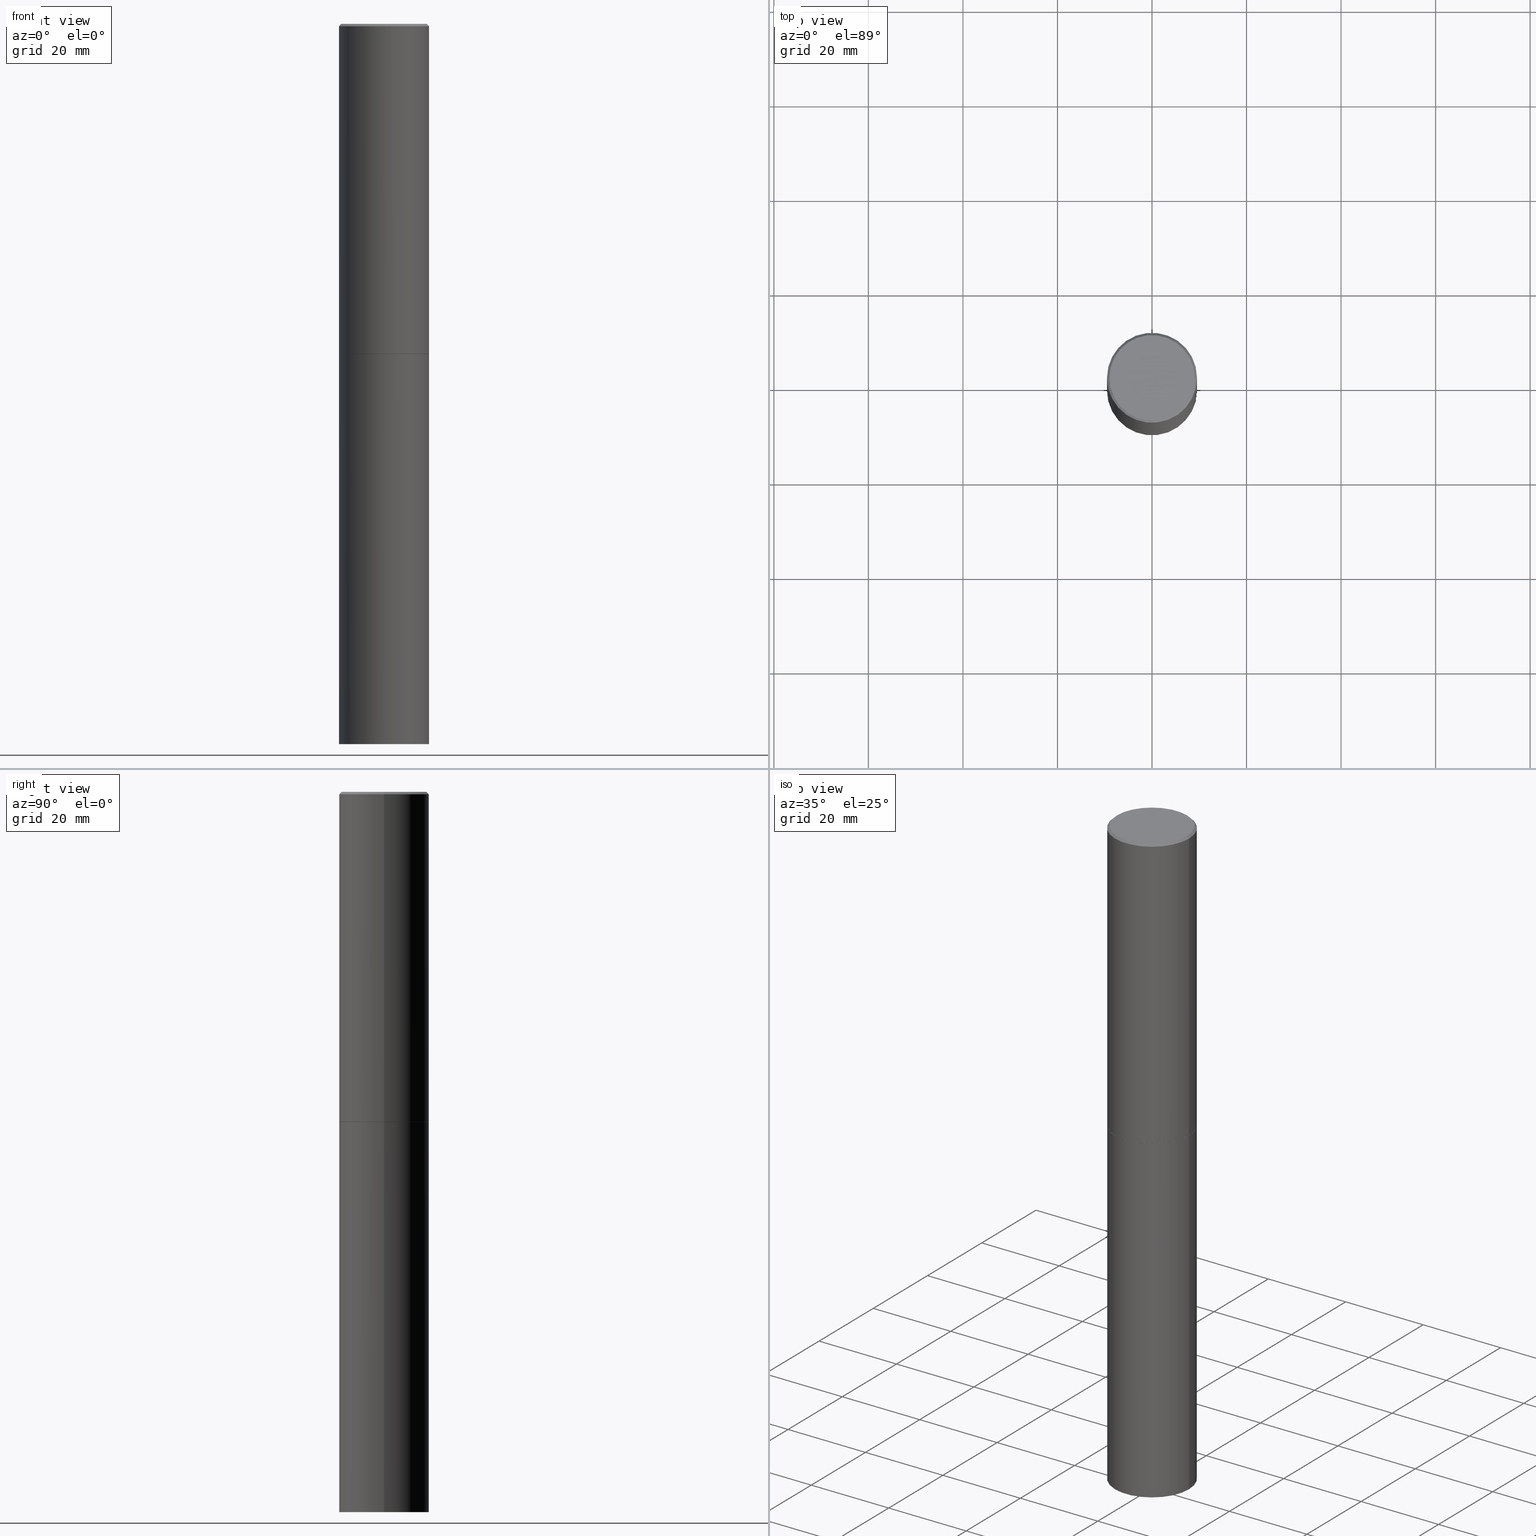
[diagram: canonical four-view strip — front | top / right | iso, engineering-drawing reading convention]
A machine part, canonical four-view strip (front | top / right | iso — engineering-drawing reading convention). The complete STEP part file that produces these views, byte-faithful:
ISO-10303-21;
HEADER;
FILE_DESCRIPTION (( 'STEP AP203' ),
    '1' );
FILE_NAME ('34750.STEP',
    '2024-02-27T17:34:54',
    ( '' ),
    ( '' ),
    'SwSTEP 2.0',
    'SolidWorks 2023',
    '' );
FILE_SCHEMA (( 'CONFIG_CONTROL_DESIGN' ));
ENDSEC;

DATA;
#1 = EDGE_CURVE ( 'NONE', #173, #246, #187, .T. ) ;
#2 = DIRECTION ( 'NONE',  ( -2.445468806185136597E-29, 3.491481338843145583E-15, 1.000000000000000000 ) ) ;
#3 = PERSON_AND_ORGANIZATION_ROLE ( 'design_owner' ) ;
#4 = CC_DESIGN_PERSON_AND_ORGANIZATION_ASSIGNMENT ( #56, #225, ( #26 ) ) ;
#5 =( CONVERSION_BASED_UNIT ( 'INCH', #251 ) LENGTH_UNIT ( ) NAMED_UNIT ( #166 ) );
#6 = EDGE_CURVE ( 'NONE', #199, #51, #306, .T. ) ;
#7 = CIRCLE ( 'NONE', #271, 0.3750000000000000555 ) ;
#8 = ORIENTED_EDGE ( 'NONE', *, *, #11, .F. ) ;
#9 = CC_DESIGN_PERSON_AND_ORGANIZATION_ASSIGNMENT ( #300, #3, ( #341 ) ) ;
#10 = ORIENTED_EDGE ( 'NONE', *, *, #15, .F. ) ;
#11 = EDGE_CURVE ( 'NONE', #146, #136, #348, .T. ) ;
#12 = AXIS2_PLACEMENT_3D ( 'NONE', #132, #328, #108 ) ;
#13 = DIRECTION ( 'NONE',  ( -2.445468806185136597E-29, 3.491481338843145583E-15, 1.000000000000000000 ) ) ;
#14 = CARTESIAN_POINT ( 'NONE',  ( 6.722593748202942280E-29, -9.598082200479810007E-15, -2.749000000000000554 ) ) ;
#15 = EDGE_CURVE ( 'NONE', #199, #61, #148, .T. ) ;
#16 = DIRECTION ( 'NONE',  ( 1.000000000000000000, -6.982962677686266711E-15, 0.000000000000000000 ) ) ;
#17 =( GEOMETRIC_REPRESENTATION_CONTEXT ( 3 ) GLOBAL_UNCERTAINTY_ASSIGNED_CONTEXT ( ( #273 ) ) GLOBAL_UNIT_ASSIGNED_CONTEXT ( ( #5, #219, #29 ) ) REPRESENTATION_CONTEXT ( 'NONE', 'WORKASPACE' ) );
#18 = DIRECTION ( 'NONE',  ( -2.438088387897960049E-29, 3.491481338843145188E-15, 1.000000000000000000 ) ) ;
#19 = CARTESIAN_POINT ( 'NONE',  ( 6.722593748202942280E-29, -9.598082200479810007E-15, -2.749000000000000554 ) ) ;
#20 = PERSON_AND_ORGANIZATION_ROLE ( 'creator' ) ;
#21 = CARTESIAN_POINT ( 'NONE',  ( 0.3549999999999997047, -2.538996582575039076E-15, 4.268512490117958041E-18 ) ) ;
#22 = ORIENTED_EDGE ( 'NONE', *, *, #1, .T. ) ;
#23 = FACE_OUTER_BOUND ( 'NONE', #352, .T. ) ;
#24 = AXIS2_PLACEMENT_3D ( 'NONE', #232, #67, #288 ) ;
#25 = MANIFOLD_SOLID_BREP ( 'Body-Move/Copy2[1]', #349 ) ;
#26 = PRODUCT_DEFINITION_FORMATION_WITH_SPECIFIED_SOURCE ( 'ANY', '', #341, .NOT_KNOWN. ) ;
#27 = DIRECTION ( 'NONE',  ( 0.000000000000000000, 0.000000000000000000, 1.000000000000000000 ) ) ;
#28 = EDGE_CURVE ( 'NONE', #51, #199, #186, .T. ) ;
#29 =( NAMED_UNIT ( * ) SI_UNIT ( $, .STERADIAN. ) SOLID_ANGLE_UNIT ( ) );
#30 = ORGANIZATION ( 'UNSPECIFIED', 'UNSPECIFIED', '' ) ;
#31 = ORIENTED_EDGE ( 'NONE', *, *, #116, .F. ) ;
#32 = VECTOR ( 'NONE', #100, 39.37007874015748143 ) ;
#33 = DIRECTION ( 'NONE',  ( -0.7071067811865471286, 2.468850131082252722E-15, -0.7071067811865479058 ) ) ;
#34 = CALENDAR_DATE ( 2024, 27, 2 ) ;
#35 = ORIENTED_EDGE ( 'NONE', *, *, #66, .T. ) ;
#36 = CC_DESIGN_DATE_AND_TIME_ASSIGNMENT ( #167, #110, ( #182 ) ) ;
#37 = DIRECTION ( 'NONE',  ( 1.000000000000000000, -6.982962677686265133E-15, 0.000000000000000000 ) ) ;
#38 = CC_DESIGN_PERSON_AND_ORGANIZATION_ASSIGNMENT ( #156, #190, ( #60 ) ) ;
#39 = CARTESIAN_POINT ( 'NONE',  ( -0.3749999999999998890, 2.664535259100374908E-15, -1.844600658845589038E-29 ) ) ;
#40 = AXIS2_PLACEMENT_3D ( 'NONE', #85, #188, #74 ) ;
#41 = EDGE_LOOP ( 'NONE', ( #22, #205, #158, #31 ) ) ;
#42 = LINE ( 'NONE', #285, #124 ) ;
#43 = CARTESIAN_POINT ( 'NONE',  ( 4.890937612370293302E-31, -6.982962677686318726E-17, -0.02000000000000008021 ) ) ;
#44 = FACE_OUTER_BOUND ( 'NONE', #125, .T. ) ;
#45 = DIRECTION ( 'NONE',  ( 1.000000000000000000, -6.982962677686265922E-15, 4.876176775795935793E-29 ) ) ;
#46 = ORIENTED_EDGE ( 'NONE', *, *, #163, .F. ) ;
#47 = AXIS2_PLACEMENT_3D ( 'NONE', #280, #27, #336 ) ;
#48 = PERSON_AND_ORGANIZATION_ROLE ( 'design_supplier' ) ;
#49 = LINE ( 'NONE', #82, #92 ) ;
#50 = DIRECTION ( 'NONE',  ( -2.445468806185136877E-29, 3.491481338843145188E-15, 1.000000000000000000 ) ) ;
#51 = VERTEX_POINT ( 'NONE', #150 ) ;
#52 = APPROVAL_STATUS ( 'not_yet_approved' ) ;
#53 = CARTESIAN_POINT ( 'NONE',  ( 4.890937612370293302E-31, -6.982962677686318726E-17, -0.02000000000000008021 ) ) ;
#54 = AXIS2_PLACEMENT_3D ( 'NONE', #19, #356, #214 ) ;
#55 = COORDINATED_UNIVERSAL_TIME_OFFSET ( 5, 0, .BEHIND. ) ;
#56 = PERSON_AND_ORGANIZATION ( #172, #30 ) ;
#57 = APPROVAL_DATE_TIME ( #227, #312 ) ;
#58 = CARTESIAN_POINT ( 'NONE',  ( 2.618611004132417464E-15, 0.3749999999999903966, -2.750000000000000888 ) ) ;
#59 = CLOSED_SHELL ( 'NONE', ( #91, #70, #76, #204, #305, #295, #325, #193 ) ) ;
#60 = SECURITY_CLASSIFICATION ( '', '', #81 ) ;
#61 = VERTEX_POINT ( 'NONE', #265 ) ;
#62 = EDGE_CURVE ( 'NONE', #246, #344, #126, .T. ) ;
#63 = ORIENTED_EDGE ( 'NONE', *, *, #168, .T. ) ;
#64 = VECTOR ( 'NONE', #263, 39.37007874015748143 ) ;
#65 = AXIS2_PLACEMENT_3D ( 'NONE', #206, #69, #213 ) ;
#66 = EDGE_CURVE ( 'NONE', #314, #146, #42, .T. ) ;
#67 = DIRECTION ( 'NONE',  ( -2.445468806185136597E-29, 3.491481338843145583E-15, 1.000000000000000000 ) ) ;
#68 = DIRECTION ( 'NONE',  ( 1.000000000000000000, -6.982962677686265922E-15, 0.000000000000000000 ) ) ;
#69 = DIRECTION ( 'NONE',  ( -2.445468806185136597E-29, 3.491481338843145583E-15, 1.000000000000000000 ) ) ;
#70 = ADVANCED_FACE ( 'NONE', ( #145 ), #301, .T. ) ;
#71 = CARTESIAN_POINT ( 'NONE',  ( 0.3750000000000000555, -2.356749903719122272E-14, -6.000000000000000888 ) ) ;
#72 = ORIENTED_EDGE ( 'NONE', *, *, #140, .F. ) ;
#73 = DIRECTION ( 'NONE',  ( -2.445468806185136597E-29, 3.491481338843145583E-15, 1.000000000000000000 ) ) ;
#74 = DIRECTION ( 'NONE',  ( -1.000000000000000000, 6.982962677686265922E-15, -4.876176775795935793E-29 ) ) ;
#75 = CALENDAR_DATE ( 2024, 27, 2 ) ;
#76 = ADVANCED_FACE ( 'NONE', ( #23 ), #240, .T. ) ;
#77 = CARTESIAN_POINT ( 'NONE',  ( -0.3739999999999999991, -6.938845395727654346E-15, -2.749999999999999556 ) ) ;
#78 = CONICAL_SURFACE ( 'NONE', #307, 0.3749999999999997780, 0.7853981633974477239 ) ;
#79 = EDGE_LOOP ( 'NONE', ( #354, #179, #321, #8 ) ) ;
#80 = LOCAL_TIME ( 12, 34, 54.00000000000000000, #230 ) ;
#81 = SECURITY_CLASSIFICATION_LEVEL ( 'unclassified' ) ;
#82 = CARTESIAN_POINT ( 'NONE',  ( 0.3749999999999998890, -2.618611004132349228E-15, 1.828566290923475362E-29 ) ) ;
#83 = EDGE_LOOP ( 'NONE', ( #160, #63 ) ) ;
#84 = DATE_TIME_ROLE ( 'classification_date' ) ;
#85 = CARTESIAN_POINT ( 'NONE',  ( 2.478951750578622237E-15, 0.3549999999999997047, -1.237341619044265441E-15 ) ) ;
#86 = ADVANCED_FACE ( 'NONE', ( #106 ), #103, .T. ) ;
#87 = COORDINATED_UNIVERSAL_TIME_OFFSET ( 5, 0, .BEHIND. ) ;
#88 = AXIS2_PLACEMENT_3D ( 'NONE', #184, #212, #216 ) ;
#89 = APPROVAL_ROLE ( '' ) ;
#90 = ORIENTED_EDGE ( 'NONE', *, *, #250, .T. ) ;
#91 = ADVANCED_FACE ( 'NONE', ( #195 ), #154, .T. ) ;
#92 = VECTOR ( 'NONE', #50, 39.37007874015748143 ) ;
#93 = ORIENTED_EDGE ( 'NONE', *, *, #176, .F. ) ;
#94 = EDGE_CURVE ( 'NONE', #363, #344, #235, .T. ) ;
#95 = EDGE_LOOP ( 'NONE', ( #121, #90, #286, #332 ) ) ;
#96 = CARTESIAN_POINT ( 'NONE',  ( 0.3749999999999997780, -2.642516375941186056E-15, -0.02000000000000008021 ) ) ;
#97 = DIRECTION ( 'NONE',  ( -2.445468806185136597E-29, 3.491481338843145583E-15, 1.000000000000000000 ) ) ;
#98 = CARTESIAN_POINT ( 'NONE',  ( 0.3750000000000000555, -1.221669320461216002E-14, -2.749000000000000554 ) ) ;
#99 = DIRECTION ( 'NONE',  ( 1.000000000000000000, -6.982962677686265133E-15, 0.000000000000000000 ) ) ;
#100 = DIRECTION ( 'NONE',  ( -2.445468806185136877E-29, 3.491481338843145188E-15, 1.000000000000000000 ) ) ;
#101 = DIRECTION ( 'NONE',  ( 1.000000000000000000, -6.982962677686261189E-15, 0.000000000000000000 ) ) ;
#102 = AXIS2_PLACEMENT_3D ( 'NONE', #298, #155, #277 ) ;
#103 = PLANE ( 'NONE',  #88 ) ;
#104 = CC_DESIGN_PERSON_AND_ORGANIZATION_ASSIGNMENT ( #185, #48, ( #26 ) ) ;
#105 = DIRECTION ( 'NONE',  ( -2.445468806185136597E-29, 3.491481338843145583E-15, 1.000000000000000000 ) ) ;
#106 = FACE_OUTER_BOUND ( 'NONE', #324, .T. ) ;
#107 = CC_DESIGN_PERSON_AND_ORGANIZATION_ASSIGNMENT ( #330, #20, ( #182 ) ) ;
#108 = DIRECTION ( 'NONE',  ( 1.000000000000000000, -6.982962677686266711E-15, 0.000000000000000000 ) ) ;
#109 = EDGE_LOOP ( 'NONE', ( #269, #283, #231, #72 ) ) ;
#110 = DATE_TIME_ROLE ( 'creation_date' ) ;
#111 = LINE ( 'NONE', #242, #343 ) ;
#112 = CC_DESIGN_APPROVAL ( #122, ( #182 ) ) ;
#113 = ORIENTED_EDGE ( 'NONE', *, *, #66, .F. ) ;
#114 = PERSON_AND_ORGANIZATION ( #172, #30 ) ;
#115 = DIRECTION ( 'NONE',  ( -2.445468806185136597E-29, 3.491481338843145583E-15, 1.000000000000000000 ) ) ;
#116 = EDGE_CURVE ( 'NONE', #173, #363, #111, .T. ) ;
#117 = PRODUCT_DEFINITION_SHAPE ( 'NONE', 'NONE',  #182 ) ;
#118 = DIRECTION ( 'NONE',  ( -1.000000000000000000, 6.982962677686265922E-15, 0.000000000000000000 ) ) ;
#119 = MECHANICAL_CONTEXT ( 'NONE', #181, 'mechanical' ) ;
#120 = APPROVAL_PERSON_ORGANIZATION ( #194, #312, #313 ) ;
#121 = ORIENTED_EDGE ( 'NONE', *, *, #62, .F. ) ;
#122 = APPROVAL ( #52, 'UNSPECIFIED' ) ;
#123 = ORIENTED_EDGE ( 'NONE', *, *, #28, .T. ) ;
#124 = VECTOR ( 'NONE', #33, 39.37007874015748143 ) ;
#125 = EDGE_LOOP ( 'NONE', ( #224, #192 ) ) ;
#126 = LINE ( 'NONE', #237, #32 ) ;
#127 = FACE_OUTER_BOUND ( 'NONE', #340, .T. ) ;
#128 = CARTESIAN_POINT ( 'NONE',  ( -0.3749999999999997780, 2.548781377355484746E-15, -0.02000000000000008021 ) ) ;
#129 = AXIS2_PLACEMENT_3D ( 'NONE', #14, #180, #351 ) ;
#130 = CARTESIAN_POINT ( 'NONE',  ( 6.725039217009123399E-29, -9.601573681818648281E-15, -2.749999999999999556 ) ) ;
#131 = LOCAL_TIME ( 12, 34, 54.00000000000000000, #87 ) ;
#132 = CARTESIAN_POINT ( 'NONE',  ( 6.725039217009124520E-29, -9.601573681818649859E-15, -2.750000000000000000 ) ) ;
#133 = DESIGN_CONTEXT ( 'detailed design', #287, 'design' ) ;
#134 = CALENDAR_DATE ( 2024, 27, 2 ) ;
#135 = DIRECTION ( 'NONE',  ( -2.445468806185136597E-29, 3.491481338843145583E-15, 1.000000000000000000 ) ) ;
#136 = VERTEX_POINT ( 'NONE', #191 ) ;
#137 = APPROVAL_ROLE ( '' ) ;
#138 = CARTESIAN_POINT ( 'NONE',  ( 0.000000000000000000, 0.000000000000000000, 0.000000000000000000 ) ) ;
#139 = VECTOR ( 'NONE', #358, 39.37007874015748143 ) ;
#140 = EDGE_CURVE ( 'NONE', #259, #136, #49, .T. ) ;
#141 =( LENGTH_UNIT ( ) NAMED_UNIT ( * ) SI_UNIT ( $, .METRE. ) );
#142 = ORIENTED_EDGE ( 'NONE', *, *, #244, .T. ) ;
#143 = AXIS2_PLACEMENT_3D ( 'NONE', #290, #73, #101 ) ;
#144 = AXIS2_PLACEMENT_3D ( 'NONE', #58, #345, #347 ) ;
#145 = FACE_OUTER_BOUND ( 'NONE', #109, .T. ) ;
#146 = VERTEX_POINT ( 'NONE', #128 ) ;
#147 = CARTESIAN_POINT ( 'NONE',  ( 6.725039217009123399E-29, -9.601573681818648281E-15, -2.749999999999999556 ) ) ;
#148 = LINE ( 'NONE', #171, #64 ) ;
#149 = AXIS2_PLACEMENT_3D ( 'NONE', #334, #115, #218 ) ;
#150 = CARTESIAN_POINT ( 'NONE',  ( 0.3739999999999999991, -1.221320172327331228E-14, -2.749999999999999556 ) ) ;
#151 = CYLINDRICAL_SURFACE ( 'NONE', #65, 0.3749999999999998890 ) ;
#152 = CARTESIAN_POINT ( 'NONE',  ( 4.890937612370293302E-31, -6.982962677686318726E-17, -0.02000000000000008021 ) ) ;
#153 = PLANE ( 'NONE',  #322 ) ;
#154 = CONICAL_SURFACE ( 'NONE', #234, 0.3739999999999999991, 0.7853981633980972044 ) ;
#155 = DIRECTION ( 'NONE',  ( -2.445468806185136597E-29, 3.491481338843145583E-15, 1.000000000000000000 ) ) ;
#156 = PERSON_AND_ORGANIZATION ( #172, #30 ) ;
#157 = CYLINDRICAL_SURFACE ( 'NONE', #102, 0.3750000000000000555 ) ;
#158 = ORIENTED_EDGE ( 'NONE', *, *, #94, .F. ) ;
#159 = CYLINDRICAL_SURFACE ( 'NONE', #203, 0.3750000000000000555 ) ;
#160 = ORIENTED_EDGE ( 'NONE', *, *, #94, .T. ) ;
#161 = MANIFOLD_SOLID_BREP ( 'Body-Move/Copy2[2]', #59 ) ;
#162 = CARTESIAN_POINT ( 'NONE',  ( 0.3750000000000000555, -1.222018468595100145E-14, -2.750000000000000000 ) ) ;
#163 = EDGE_CURVE ( 'NONE', #61, #259, #364, .T. ) ;
#164 = DIRECTION ( 'NONE',  ( 2.445468806185136597E-29, -3.491481338843145583E-15, -1.000000000000000000 ) ) ;
#165 = CONICAL_SURFACE ( 'NONE', #279, 0.3739999999999999991, 0.7853981633980972044 ) ;
#166 = DIMENSIONAL_EXPONENTS ( 1.000000000000000000, 0.000000000000000000, 0.000000000000000000, 0.000000000000000000, 0.000000000000000000, 0.000000000000000000, 0.000000000000000000 ) ;
#167 = DATE_AND_TIME ( #196, #131 ) ;
#168 = EDGE_CURVE ( 'NONE', #344, #363, #7, .T. ) ;
#169 = VECTOR ( 'NONE', #236, 39.37007874015748143 ) ;
#170 = ADVANCED_FACE ( 'NONE', ( #361 ), #159, .T. ) ;
#171 = CARTESIAN_POINT ( 'NONE',  ( -0.3739999999999999991, -6.944143850075873593E-15, -2.749999999999999556 ) ) ;
#172 = PERSON ( 'UNSPECIFIED', 'UNSPECIFIED', 'UNSPECIFIED', ('UNSPECIFIED'), ('UNSPECIFIED'), ('UNSPECIFIED') ) ;
#173 = VERTEX_POINT ( 'NONE', #71 ) ;
#174 = LINE ( 'NONE', #262, #169 ) ;
#175 = ORIENTED_EDGE ( 'NONE', *, *, #1, .F. ) ;
#176 = EDGE_CURVE ( 'NONE', #314, #202, #223, .T. ) ;
#177 = CARTESIAN_POINT ( 'NONE',  ( 6.725039217009123399E-29, -9.601573681818648281E-15, -2.749999999999999556 ) ) ;
#178 = AXIS2_PLACEMENT_3D ( 'NONE', #267, #183, #353 ) ;
#179 = ORIENTED_EDGE ( 'NONE', *, *, #163, .T. ) ;
#180 = DIRECTION ( 'NONE',  ( -2.445468806185136597E-29, 3.491481338843145583E-15, 1.000000000000000000 ) ) ;
#181 = APPLICATION_CONTEXT ( 'configuration controlled 3d designs of mechanical parts and assemblies' ) ;
#182 = PRODUCT_DEFINITION ( 'UNKNOWN', '', #26, #133 ) ;
#183 = DIRECTION ( 'NONE',  ( -2.445468806185136597E-29, 3.491481338843145583E-15, 1.000000000000000000 ) ) ;
#184 = CARTESIAN_POINT ( 'NONE',  ( 2.618611004132496745E-15, 0.3749999999999790723, -6.000000000000001776 ) ) ;
#185 = PERSON_AND_ORGANIZATION ( #172, #30 ) ;
#186 = CIRCLE ( 'NONE', #233, 0.3739999999999999991 ) ;
#187 = CIRCLE ( 'NONE', #24, 0.3750000000000000555 ) ;
#188 = DIRECTION ( 'NONE',  ( 2.438088387897960049E-29, -3.491481338843145188E-15, -1.000000000000000000 ) ) ;
#189 = ORIENTED_EDGE ( 'NONE', *, *, #335, .F. ) ;
#190 = PERSON_AND_ORGANIZATION_ROLE ( 'classification_officer' ) ;
#191 = CARTESIAN_POINT ( 'NONE',  ( 0.3749999999999997780, -2.642516375941186056E-15, -0.02000000000000008021 ) ) ;
#192 = ORIENTED_EDGE ( 'NONE', *, *, #6, .F. ) ;
#193 = ADVANCED_FACE ( 'NONE', ( #215 ), #331, .F. ) ;
#194 = PERSON_AND_ORGANIZATION ( #172, #30 ) ;
#195 = FACE_OUTER_BOUND ( 'NONE', #310, .T. ) ;
#196 = CALENDAR_DATE ( 2024, 27, 2 ) ;
#197 = AXIS2_PLACEMENT_3D ( 'NONE', #152, #97, #68 ) ;
#198 = APPROVAL_STATUS ( 'not_yet_approved' ) ;
#199 = VERTEX_POINT ( 'NONE', #77 ) ;
#200 = ADVANCED_FACE ( 'NONE', ( #304 ), #157, .T. ) ;
#201 = CARTESIAN_POINT ( 'NONE',  ( 6.725039217009123399E-29, -9.601573681818648281E-15, -2.749999999999999556 ) ) ;
#202 = VERTEX_POINT ( 'NONE', #21 ) ;
#203 = AXIS2_PLACEMENT_3D ( 'NONE', #362, #326, #45 ) ;
#204 = ADVANCED_FACE ( 'NONE', ( #245 ), #78, .T. ) ;
#205 = ORIENTED_EDGE ( 'NONE', *, *, #62, .T. ) ;
#206 = CARTESIAN_POINT ( 'NONE',  ( 0.000000000000000000, 0.000000000000000000, 0.000000000000000000 ) ) ;
#207 = CC_DESIGN_DATE_AND_TIME_ASSIGNMENT ( #333, #84, ( #60 ) ) ;
#208 = ORIENTED_EDGE ( 'NONE', *, *, #256, .F. ) ;
#209 = DIRECTION ( 'NONE',  ( -2.445468806185136597E-29, 3.491481338843145583E-15, 1.000000000000000000 ) ) ;
#210 = AXIS2_PLACEMENT_3D ( 'NONE', #138, #272, #278 ) ;
#211 = LOCAL_TIME ( 12, 34, 54.00000000000000000, #275 ) ;
#212 = DIRECTION ( 'NONE',  ( 2.438088387897960049E-29, -3.491481338843145188E-15, -1.000000000000000000 ) ) ;
#213 = DIRECTION ( 'NONE',  ( 1.000000000000000000, -6.982962677686266711E-15, 4.876176775795935793E-29 ) ) ;
#214 = DIRECTION ( 'NONE',  ( 1.000000000000000000, -6.982962677686266711E-15, 0.000000000000000000 ) ) ;
#215 = FACE_OUTER_BOUND ( 'NONE', #315, .T. ) ;
#216 = DIRECTION ( 'NONE',  ( -1.000000000000000000, 6.982962677686265922E-15, -4.876176775795935793E-29 ) ) ;
#217 = APPROVAL_DATE_TIME ( #365, #122 ) ;
#218 = DIRECTION ( 'NONE',  ( 1.000000000000000000, -6.982962677686265922E-15, 4.876231632511992107E-29 ) ) ;
#219 =( NAMED_UNIT ( * ) PLANE_ANGLE_UNIT ( ) SI_UNIT ( $, .RADIAN. ) );
#220 = ORIENTED_EDGE ( 'NONE', *, *, #244, .F. ) ;
#221 = APPLICATION_PROTOCOL_DEFINITION ( 'international standard', 'config_control_design', 1994, #287 ) ;
#222 = FACE_OUTER_BOUND ( 'NONE', #83, .T. ) ;
#223 = CIRCLE ( 'NONE', #149, 0.3549999999999997047 ) ;
#224 = ORIENTED_EDGE ( 'NONE', *, *, #28, .F. ) ;
#225 = PERSON_AND_ORGANIZATION_ROLE ( 'creator' ) ;
#226 = SHAPE_DEFINITION_REPRESENTATION ( #117, #276 ) ;
#227 = DATE_AND_TIME ( #34, #80 ) ;
#228 = ADVANCED_FACE ( 'NONE', ( #222 ), #339, .F. ) ;
#229 = LOCAL_TIME ( 12, 34, 54.00000000000000000, #55 ) ;
#230 = COORDINATED_UNIVERSAL_TIME_OFFSET ( 5, 0, .BEHIND. ) ;
#231 = ORIENTED_EDGE ( 'NONE', *, *, #320, .F. ) ;
#232 = CARTESIAN_POINT ( 'NONE',  ( 1.467281283711081958E-28, -2.094888803305887271E-14, -6.000000000000000888 ) ) ;
#233 = AXIS2_PLACEMENT_3D ( 'NONE', #177, #13, #266 ) ;
#234 = AXIS2_PLACEMENT_3D ( 'NONE', #130, #135, #249 ) ;
#235 = CIRCLE ( 'NONE', #12, 0.3750000000000000555 ) ;
#236 = DIRECTION ( 'NONE',  ( 0.7071067811870063169, -2.468850131087062801E-15, 0.7071067811860887176 ) ) ;
#237 = CARTESIAN_POINT ( 'NONE',  ( -0.3750000000000000555, 2.664535259100376091E-15, -1.844600658845589598E-29 ) ) ;
#238 = CARTESIAN_POINT ( 'NONE',  ( -0.3549999999999997047, 2.513866563967053491E-15, 4.268512490082953109E-18 ) ) ;
#239 = DIRECTION ( 'NONE',  ( -2.445468806185136877E-29, 3.491481338843145188E-15, 1.000000000000000000 ) ) ;
#240 = CONICAL_SURFACE ( 'NONE', #254, 0.3749999999999997780, 0.7853981633974477239 ) ;
#241 = CC_DESIGN_APPROVAL ( #312, ( #60 ) ) ;
#242 = CARTESIAN_POINT ( 'NONE',  ( 0.3750000000000000555, -2.618611004132350016E-15, 1.828566290923476203E-29 ) ) ;
#243 = CARTESIAN_POINT ( 'NONE',  ( 6.725039217009124520E-29, -9.601573681818649859E-15, -2.750000000000000000 ) ) ;
#244 = EDGE_CURVE ( 'NONE', #202, #136, #316, .T. ) ;
#245 = FACE_OUTER_BOUND ( 'NONE', #261, .T. ) ;
#246 = VERTEX_POINT ( 'NONE', #292 ) ;
#247 = COORDINATED_UNIVERSAL_TIME_OFFSET ( 5, 0, .BEHIND. ) ;
#248 = PRODUCT_RELATED_PRODUCT_CATEGORY ( 'detail', '', ( #341 ) ) ;
#249 = DIRECTION ( 'NONE',  ( 1.000000000000000000, -6.982962677686265133E-15, 0.000000000000000000 ) ) ;
#250 = EDGE_CURVE ( 'NONE', #246, #173, #317, .T. ) ;
#251 = LENGTH_MEASURE_WITH_UNIT ( LENGTH_MEASURE( 0.02539999999999999897 ), #141 );
#252 = APPLICATION_PROTOCOL_DEFINITION ( 'international standard', 'config_control_design', 1994, #181 ) ;
#253 = AXIS2_PLACEMENT_3D ( 'NONE', #201, #350, #37 ) ;
#254 = AXIS2_PLACEMENT_3D ( 'NONE', #43, #359, #268 ) ;
#255 = CC_DESIGN_APPROVAL ( #342, ( #26 ) ) ;
#256 = EDGE_CURVE ( 'NONE', #259, #61, #289, .T. ) ;
#257 = ORIENTED_EDGE ( 'NONE', *, *, #176, .T. ) ;
#258 = CIRCLE ( 'NONE', #357, 0.3749999999999997780 ) ;
#259 = VERTEX_POINT ( 'NONE', #98 ) ;
#260 = EDGE_CURVE ( 'NONE', #61, #146, #360, .T. ) ;
#261 = EDGE_LOOP ( 'NONE', ( #220, #93, #35, #293 ) ) ;
#262 = CARTESIAN_POINT ( 'NONE',  ( 0.3739999999999999991, -1.221320172327331228E-14, -2.749999999999999556 ) ) ;
#263 = DIRECTION ( 'NONE',  ( -0.7071067811870063169, 7.493145998872012346E-15, 0.7071067811860887176 ) ) ;
#264 = CIRCLE ( 'NONE', #178, 0.3549999999999997047 ) ;
#265 = CARTESIAN_POINT ( 'NONE',  ( -0.3750000000000000555, -2.169420654527958195E-15, -2.749000000000000554 ) ) ;
#266 = DIRECTION ( 'NONE',  ( 1.000000000000000000, -6.982962677686265133E-15, 0.000000000000000000 ) ) ;
#267 = CARTESIAN_POINT ( 'NONE',  ( -1.043851414335219820E-46, 1.490343170380447200E-32, 4.268512490100411279E-18 ) ) ;
#268 = DIRECTION ( 'NONE',  ( -1.000000000000000000, 6.982962677686265922E-15, 0.000000000000000000 ) ) ;
#269 = ORIENTED_EDGE ( 'NONE', *, *, #256, .T. ) ;
#270 = CARTESIAN_POINT ( 'NONE',  ( 6.725039217009124520E-29, -9.601573681818649859E-15, -2.750000000000000000 ) ) ;
#271 = AXIS2_PLACEMENT_3D ( 'NONE', #243, #2, #16 ) ;
#272 = DIRECTION ( 'NONE',  ( -2.445468806185136597E-29, 3.491481338843145583E-15, 1.000000000000000000 ) ) ;
#273 = UNCERTAINTY_MEASURE_WITH_UNIT (LENGTH_MEASURE( 1.000000000000000082E-05 ), #5, 'distance_accuracy_value', 'NONE');
#274 = EDGE_CURVE ( 'NONE', #202, #314, #264, .T. ) ;
#275 = COORDINATED_UNIVERSAL_TIME_OFFSET ( 5, 0, .BEHIND. ) ;
#276 = ADVANCED_BREP_SHAPE_REPRESENTATION ( '34750', ( #25, #161, #47 ), #17 ) ;
#277 = DIRECTION ( 'NONE',  ( 1.000000000000000000, -6.982962677686265922E-15, 4.876176775795935793E-29 ) ) ;
#278 = DIRECTION ( 'NONE',  ( 1.000000000000000000, -6.982962677686266711E-15, 4.876176775795935793E-29 ) ) ;
#279 = AXIS2_PLACEMENT_3D ( 'NONE', #147, #105, #99 ) ;
#280 = CARTESIAN_POINT ( 'NONE',  ( 0.000000000000000000, 0.000000000000000000, 0.000000000000000000 ) ) ;
#281 = DATE_AND_TIME ( #296, #229 ) ;
#282 = APPROVAL_PERSON_ORGANIZATION ( #114, #122, #137 ) ;
#283 = ORIENTED_EDGE ( 'NONE', *, *, #260, .T. ) ;
#284 = ORIENTED_EDGE ( 'NONE', *, *, #274, .F. ) ;
#285 = CARTESIAN_POINT ( 'NONE',  ( -0.3749999999999997780, 2.548781377355484746E-15, -0.02000000000000008021 ) ) ;
#286 = ORIENTED_EDGE ( 'NONE', *, *, #116, .T. ) ;
#287 = APPLICATION_CONTEXT ( 'configuration controlled 3d designs of mechanical parts and assemblies' ) ;
#288 = DIRECTION ( 'NONE',  ( 1.000000000000000000, -6.982962677686261189E-15, 0.000000000000000000 ) ) ;
#289 = CIRCLE ( 'NONE', #129, 0.3750000000000000555 ) ;
#290 = CARTESIAN_POINT ( 'NONE',  ( 1.467281283711081958E-28, -2.094888803305887271E-14, -6.000000000000000888 ) ) ;
#291 = ORIENTED_EDGE ( 'NONE', *, *, #320, .T. ) ;
#292 = CARTESIAN_POINT ( 'NONE',  ( -0.3750000000000000555, -1.261069559833838480E-14, -6.000000000000000888 ) ) ;
#293 = ORIENTED_EDGE ( 'NONE', *, *, #11, .T. ) ;
#294 = FACE_OUTER_BOUND ( 'NONE', #79, .T. ) ;
#295 = ADVANCED_FACE ( 'NONE', ( #127 ), #165, .T. ) ;
#296 = CALENDAR_DATE ( 2024, 27, 2 ) ;
#297 = VECTOR ( 'NONE', #337, 39.37007874015748143 ) ;
#298 = CARTESIAN_POINT ( 'NONE',  ( 0.000000000000000000, 0.000000000000000000, 0.000000000000000000 ) ) ;
#299 = ORIENTED_EDGE ( 'NONE', *, *, #6, .T. ) ;
#300 = PERSON_AND_ORGANIZATION ( #172, #30 ) ;
#301 = CYLINDRICAL_SURFACE ( 'NONE', #210, 0.3749999999999998890 ) ;
#302 = ORIENTED_EDGE ( 'NONE', *, *, #274, .T. ) ;
#303 = APPROVAL_STATUS ( 'not_yet_approved' ) ;
#304 = FACE_OUTER_BOUND ( 'NONE', #95, .T. ) ;
#305 = ADVANCED_FACE ( 'NONE', ( #294 ), #151, .T. ) ;
#306 = CIRCLE ( 'NONE', #253, 0.3739999999999999991 ) ;
#307 = AXIS2_PLACEMENT_3D ( 'NONE', #53, #164, #118 ) ;
#308 = CC_DESIGN_SECURITY_CLASSIFICATION ( #60, ( #26 ) ) ;
#309 = APPROVAL_DATE_TIME ( #281, #342 ) ;
#310 = EDGE_LOOP ( 'NONE', ( #123, #311, #208, #189 ) ) ;
#311 = ORIENTED_EDGE ( 'NONE', *, *, #15, .T. ) ;
#312 = APPROVAL ( #303, 'UNSPECIFIED' ) ;
#313 = APPROVAL_ROLE ( '' ) ;
#314 = VERTEX_POINT ( 'NONE', #238 ) ;
#315 = EDGE_LOOP ( 'NONE', ( #257, #302 ) ) ;
#316 = LINE ( 'NONE', #96, #297 ) ;
#317 = CIRCLE ( 'NONE', #143, 0.3750000000000000555 ) ;
#318 = CARTESIAN_POINT ( 'NONE',  ( -0.3750000000000000555, -1.261069559833838480E-14, -2.750000000000000000 ) ) ;
#319 = ORIENTED_EDGE ( 'NONE', *, *, #250, .F. ) ;
#320 = EDGE_CURVE ( 'NONE', #136, #146, #258, .T. ) ;
#321 = ORIENTED_EDGE ( 'NONE', *, *, #140, .T. ) ;
#322 = AXIS2_PLACEMENT_3D ( 'NONE', #270, #18, #327 ) ;
#323 = DIRECTION ( 'NONE',  ( 1.000000000000000000, -6.982962677686265922E-15, 0.000000000000000000 ) ) ;
#324 = EDGE_LOOP ( 'NONE', ( #175, #319 ) ) ;
#325 = ADVANCED_FACE ( 'NONE', ( #44 ), #153, .F. ) ;
#326 = DIRECTION ( 'NONE',  ( -2.445468806185136597E-29, 3.491481338843145583E-15, 1.000000000000000000 ) ) ;
#327 = DIRECTION ( 'NONE',  ( 1.000000000000000000, -6.982962677686265922E-15, 4.876176775795935793E-29 ) ) ;
#328 = DIRECTION ( 'NONE',  ( -2.445468806185136597E-29, 3.491481338843145583E-15, 1.000000000000000000 ) ) ;
#329 = LOCAL_TIME ( 12, 34, 54.00000000000000000, #247 ) ;
#330 = PERSON_AND_ORGANIZATION ( #172, #30 ) ;
#331 = PLANE ( 'NONE',  #40 ) ;
#332 = ORIENTED_EDGE ( 'NONE', *, *, #168, .F. ) ;
#333 = DATE_AND_TIME ( #134, #211 ) ;
#334 = CARTESIAN_POINT ( 'NONE',  ( -1.043851414335219820E-46, 1.490343170380447200E-32, 4.268512490100411279E-18 ) ) ;
#335 = EDGE_CURVE ( 'NONE', #51, #259, #174, .T. ) ;
#336 = DIRECTION ( 'NONE',  ( 1.000000000000000000, 0.000000000000000000, 0.000000000000000000 ) ) ;
#337 = DIRECTION ( 'NONE',  ( 0.7071067811865471286, -7.319954787623254468E-15, -0.7071067811865479058 ) ) ;
#338 = PERSON_AND_ORGANIZATION ( #172, #30 ) ;
#339 = PLANE ( 'NONE',  #144 ) ;
#340 = EDGE_LOOP ( 'NONE', ( #10, #299, #346, #46 ) ) ;
#341 = PRODUCT ( '34750', '34750', '', ( #119 ) ) ;
#342 = APPROVAL ( #198, 'UNSPECIFIED' ) ;
#343 = VECTOR ( 'NONE', #239, 39.37007874015748143 ) ;
#344 = VERTEX_POINT ( 'NONE', #318 ) ;
#345 = DIRECTION ( 'NONE',  ( 2.438088387897960049E-29, -3.491481338843145188E-15, -1.000000000000000000 ) ) ;
#346 = ORIENTED_EDGE ( 'NONE', *, *, #335, .T. ) ;
#347 = DIRECTION ( 'NONE',  ( -1.000000000000000000, 6.982962677686265922E-15, -4.876176775795935793E-29 ) ) ;
#348 = CIRCLE ( 'NONE', #197, 0.3749999999999997780 ) ;
#349 = CLOSED_SHELL ( 'NONE', ( #170, #86, #228, #200 ) ) ;
#350 = DIRECTION ( 'NONE',  ( -2.445468806185136597E-29, 3.491481338843145583E-15, 1.000000000000000000 ) ) ;
#351 = DIRECTION ( 'NONE',  ( 1.000000000000000000, -6.982962677686266711E-15, 0.000000000000000000 ) ) ;
#352 = EDGE_LOOP ( 'NONE', ( #284, #142, #291, #113 ) ) ;
#353 = DIRECTION ( 'NONE',  ( 1.000000000000000000, -6.982962677686265922E-15, 4.876231632511992107E-29 ) ) ;
#354 = ORIENTED_EDGE ( 'NONE', *, *, #260, .F. ) ;
#355 = CARTESIAN_POINT ( 'NONE',  ( 4.890937612370293302E-31, -6.982962677686318726E-17, -0.02000000000000008021 ) ) ;
#356 = DIRECTION ( 'NONE',  ( -2.445468806185136597E-29, 3.491481338843145583E-15, 1.000000000000000000 ) ) ;
#357 = AXIS2_PLACEMENT_3D ( 'NONE', #355, #209, #323 ) ;
#358 = DIRECTION ( 'NONE',  ( -2.445468806185136877E-29, 3.491481338843145188E-15, 1.000000000000000000 ) ) ;
#359 = DIRECTION ( 'NONE',  ( 2.445468806185136597E-29, -3.491481338843145583E-15, -1.000000000000000000 ) ) ;
#360 = LINE ( 'NONE', #39, #139 ) ;
#361 = FACE_OUTER_BOUND ( 'NONE', #41, .T. ) ;
#362 = CARTESIAN_POINT ( 'NONE',  ( 0.000000000000000000, 0.000000000000000000, 0.000000000000000000 ) ) ;
#363 = VERTEX_POINT ( 'NONE', #162 ) ;
#364 = CIRCLE ( 'NONE', #54, 0.3750000000000000555 ) ;
#365 = DATE_AND_TIME ( #75, #329 ) ;
#366 = APPROVAL_PERSON_ORGANIZATION ( #338, #342, #89 ) ;
ENDSEC;
END-ISO-10303-21;
